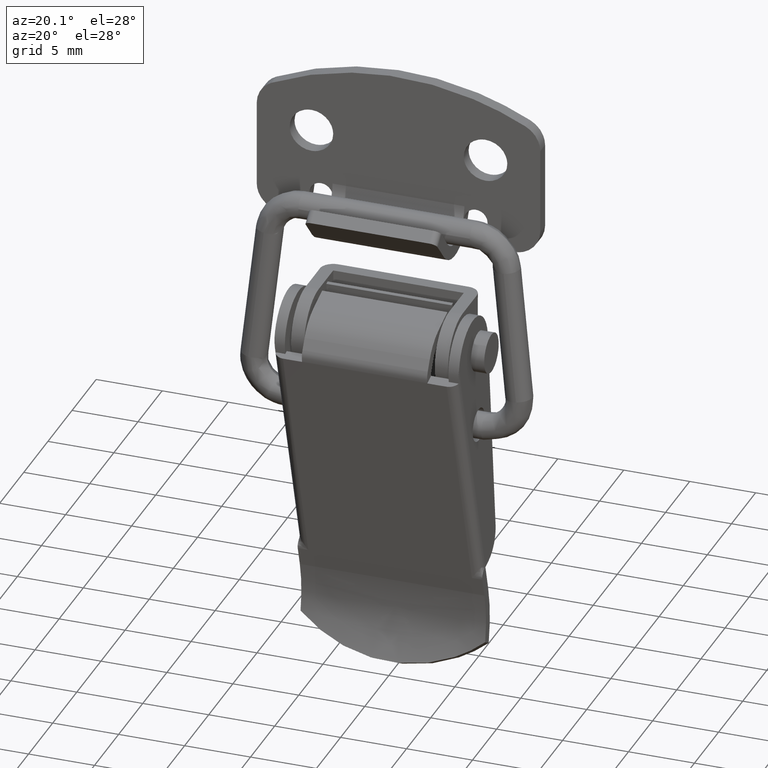
[diagram: clean part render]
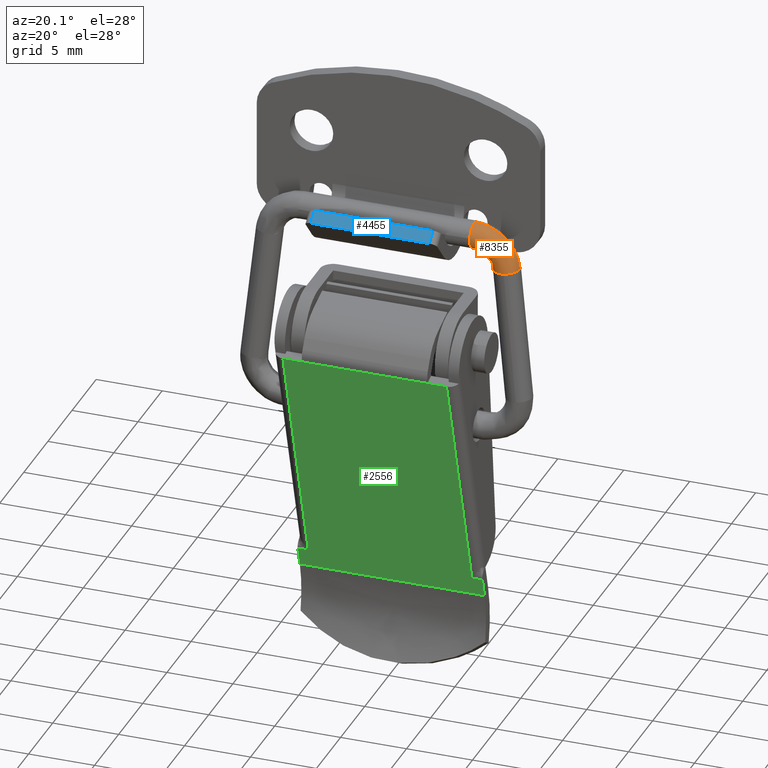
[diagram: same view with three faces highlighted in distinct colors, each labeled with its STEP entity id]
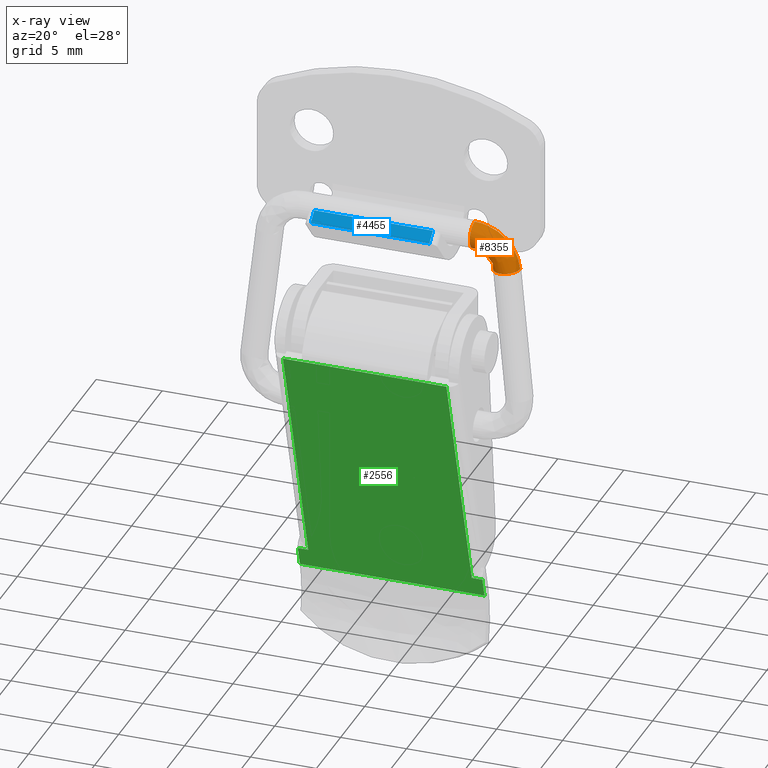
[diagram: x-ray of the same camera — body ghosted, the three highlighted faces saturated]
A machine part, auxiliary view with three faces highlighted in distinct colors.
The next image is the same camera in x-ray (body ghosted, the three faces saturated) — at least one of them is partly hidden behind the body in this view.
Their STEP definitions:

[orange] entity #8355 — the highlighted face is a freeform B-spline surface patch.
#8081=CARTESIAN_POINT('',(6.500000161111061,-0.989418673423409,0.144663909399136));
#8082=VERTEX_POINT('',#8081);
#8088=CARTESIAN_POINT('',(6.500000161111060,0.066592674805473,0.997780244173213));
#8089=VERTEX_POINT('',#8088);
#8090=CARTESIAN_POINT('',(6.500000161111060,0.066592674805473,0.997780244173213));
#8091=CARTESIAN_POINT('',(6.500000161111060,-0.194634198861513,1.015215450267097));
#8092=CARTESIAN_POINT('',(6.500000161111060,-0.461432659268814,0.925009915749482));
#8093=CARTESIAN_POINT('',(6.500000161111061,-0.835816943845512,0.597495277664344));
#8094=CARTESIAN_POINT('',(6.500000161111061,-0.954694826212640,0.377524743445717));
#8095=CARTESIAN_POINT('',(6.500000161111061,-0.989418673423409,0.144663909399136));
#8096=B_SPLINE_CURVE_WITH_KNOTS('',3,(#8090,#8091,#8092,#8093,#8094,#8095),.UNSPECIFIED.,.F.,.U.,(4,2,4),(0.0,0.125000000000000,0.237494925109924),.UNSPECIFIED.);
#8097=EDGE_CURVE('',#8089,#8082,#8096,.T.);
#8142=CARTESIAN_POINT('',(6.500000161111060,-0.066592674806069,-0.997780244173069));
#8143=VERTEX_POINT('',#8142);
#8153=CARTESIAN_POINT('',(6.500000161111061,-0.989418673423409,0.144663909399136));
#8154=CARTESIAN_POINT('',(6.500000161111061,-0.993277021582366,0.118778573152135));
#8155=CARTESIAN_POINT('',(6.500000161111061,-0.996095493010638,0.092733953720828));
#8156=CARTESIAN_POINT('',(6.500000161111061,-1.015264751540243,-0.194618040715439));
#8157=CARTESIAN_POINT('',(6.500000161111061,-0.925046503479677,-0.461406290397881));
#8158=CARTESIAN_POINT('',(6.500000161111060,-0.580261711541936,-0.855483212417382));
#8159=CARTESIAN_POINT('',(6.500000161111060,-0.327818294736270,-0.980345224991711));
#8160=CARTESIAN_POINT('',(6.500000161111060,-0.066592674806069,-0.997780244173069));
#8161=B_SPLINE_CURVE_WITH_KNOTS('',3,(#8153,#8154,#8155,#8156,#8157,#8158,#8159,#8160),.UNSPECIFIED.,.F.,.U.,(4,2,2,4),(0.237494925109924,0.250000000000000,0.375000000000000,0.500000000000000),.UNSPECIFIED.);
#8162=EDGE_CURVE('',#8082,#8143,#8161,.T.);
#8223=CARTESIAN_POINT('',(7.992258824598796,-0.111375252123258,-2.341257563667813));
#8224=VERTEX_POINT('',#8223);
#8225=CARTESIAN_POINT('',(7.992258824598796,-0.111375252123258,-2.341257563667813));
#8226=CARTESIAN_POINT('',(7.953656469183117,-0.099193781524558,-1.975813452480949));
#8227=CARTESIAN_POINT('',(7.776141883542896,-0.087607992339761,-1.628239770190030));
#8228=CARTESIAN_POINT('',(7.231197419014606,-0.071258003682082,-1.137740110455895));
#8229=CARTESIAN_POINT('',(6.867148830861085,-0.066593592505487,-0.997807780570720));
#8230=CARTESIAN_POINT('',(6.500000161111060,-0.066592674806069,-0.997780244173069));
#8231=B_SPLINE_CURVE_WITH_KNOTS('',3,(#8225,#8226,#8227,#8228,#8229,#8230),.UNSPECIFIED.,.F.,.U.,(4,2,4),(0.324576511854807,0.356201117693192,0.387825723531576),.UNSPECIFIED.);
#8232=EDGE_CURVE('',#8224,#8143,#8231,.T.);
#8236=CARTESIAN_POINT('',(9.980117214787347,-0.037796026983358,-2.133880809462196));
#8237=VERTEX_POINT('',#8236);
#8238=CARTESIAN_POINT('',(9.980117214787326,-0.037796026983360,-2.133880809462190));
#8239=CARTESIAN_POINT('',(9.890155895106378,-0.009418865462279,-1.282565974359886));
#8240=CARTESIAN_POINT('',(9.476658746089957,0.017581627120874,-0.472551186364730));
#8241=CARTESIAN_POINT('',(8.206023976355601,0.055704528484531,0.671135854544901));
#8242=CARTESIAN_POINT('',(7.356725005934775,0.066589343387157,0.997680293203252));
#8243=CARTESIAN_POINT('',(6.500000161111060,0.066592674805473,0.997780244173213));
#8244=B_SPLINE_CURVE_WITH_KNOTS('',3,(#8238,#8239,#8240,#8241,#8242,#8243),.UNSPECIFIED.,.F.,.U.,(4,2,4),(0.324576511854807,0.356201117693192,0.387825723531576),.UNSPECIFIED.);
#8245=EDGE_CURVE('',#8237,#8089,#8244,.T.);
#8272=CARTESIAN_POINT('',(9.984472439923747,-0.008120745176088,-2.186100215362883));
#8273=CARTESIAN_POINT('',(10.001946255399490,-0.279763598129993,-2.175459994717326));
#8274=CARTESIAN_POINT('',(9.902677066529000,-0.557101522276394,-2.175222429351263));
#8275=CARTESIAN_POINT('',(9.539593998449194,-0.947987822875370,-2.195136650852787));
#8276=CARTESIAN_POINT('',(9.026803254933361,-1.182234951970494,-2.233855665368793));
#8277=CARTESIAN_POINT('',(8.499707978268514,-0.985911370429690,-2.288224933461072));
#8278=CARTESIAN_POINT('',(8.111562783120611,-0.622421573917248,-2.335558993669428));
#8279=CARTESIAN_POINT('',(7.994128478130084,-0.352986597864970,-2.355195373116345));
#8280=CARTESIAN_POINT('',(7.993532512479946,-0.080728227058815,-2.364324726125360));
#8281=CARTESIAN_POINT('',(9.905580414208776,0.020867153700232,-1.316463260657441));
#8282=CARTESIAN_POINT('',(9.922658704459082,-0.250630454408248,-1.301465694673616));
#8283=CARTESIAN_POINT('',(9.825636501822727,-0.528793518215874,-1.325982319006964));
#8284=CARTESIAN_POINT('',(9.470771607143940,-0.922697818396068,-1.436436527393445));
#8285=CARTESIAN_POINT('',(8.969587068945971,-1.161207341322273,-1.603027355981006));
#8286=CARTESIAN_POINT('',(8.454419565764884,-0.969265064207260,-1.788835755641296));
#8287=CARTESIAN_POINT('',(8.075056786431192,-0.609001599982160,-1.932959783427543));
#8288=CARTESIAN_POINT('',(7.960279347606239,-0.340542760030091,-1.981880245523503));
#8289=CARTESIAN_POINT('',(7.959696859428203,-0.068289343027178,-1.991158212627003));
#8290=CARTESIAN_POINT('',(9.488471057153689,0.048561364215830,-0.485636934266628));
#8291=CARTESIAN_POINT('',(9.503459614695524,-0.222797437224038,-0.466475168201103));
#8292=CARTESIAN_POINT('',(9.418309239053693,-0.501749065228283,-0.514648718565553));
#8293=CARTESIAN_POINT('',(9.106866570375347,-0.898537585725237,-0.711629536973782));
#8294=CARTESIAN_POINT('',(8.667008751563747,-1.141120559147481,-1.000423881260630));
#8295=CARTESIAN_POINT('',(8.214880794344511,-0.953365356528551,-1.311844516939764));
#8296=CARTESIAN_POINT('',(7.881940380809064,-0.596185189114869,-1.548467450055165));
#8297=CARTESIAN_POINT('',(7.781208408420762,-0.328659207516224,-1.625373663090241));
#8298=CARTESIAN_POINT('',(7.780697204923237,-0.056410524644659,-1.634793654136928));
#8299=CARTESIAN_POINT('',(8.192811010413465,0.087435099844229,0.680575134585290));
#8300=CARTESIAN_POINT('',(8.201303044309981,-0.183728786159758,0.705584363726848));
#8301=CARTESIAN_POINT('',(8.153059584309151,-0.463787733700180,0.624191227282411));
#8302=CARTESIAN_POINT('',(7.976606200328392,-0.864626342628949,0.305707755914658));
#8303=CARTESIAN_POINT('',(7.727396928748538,-1.112929351367345,-0.154687647848527));
#8304=CARTESIAN_POINT('',(7.471235791991946,-0.931053748409591,-0.642496273370070));
#8305=CARTESIAN_POINT('',(7.282602478255423,-0.578203232174319,-1.009008741835630));
#8306=CARTESIAN_POINT('',(7.225530987445956,-0.311987197596784,-1.125213365506636));
#8307=CARTESIAN_POINT('',(7.225241356011276,-0.039745162559899,-1.134832791593517));
#8308=CARTESIAN_POINT('',(7.322421156635206,0.098367268938905,1.008540198666475));
#8309=CARTESIAN_POINT('',(7.326547216178275,-0.172741770111554,1.035194836395391));
#8310=CARTESIAN_POINT('',(7.303106967224053,-0.453112304669237,0.944454089533660));
#8311=CARTESIAN_POINT('',(7.217372831703819,-0.855090572064595,0.591780864590884));
#8312=CARTESIAN_POINT('',(7.096288489142584,-1.105003163683572,0.083097975055674));
#8313=CARTESIAN_POINT('',(6.971826402303813,-0.924782113951831,-0.454347246328724));
#8314=CARTESIAN_POINT('',(6.880174336425432,-0.573150019085136,-0.857412355064154));
#8315=CARTESIAN_POINT('',(6.852444768245430,-0.307302629809174,-0.984676337510498));
#8316=CARTESIAN_POINT('',(6.852304043753768,-0.035062465791788,-0.994351894180434));
#8317=CARTESIAN_POINT('',(6.448612050910221,0.097939067606757,0.995694167966307));
#8318=CARTESIAN_POINT('',(6.448354240197300,-0.173172112360549,1.022284578209605));
#8319=CARTESIAN_POINT('',(6.449818869398743,-0.453530484227630,0.931908711956757));
#8320=CARTESIAN_POINT('',(6.455175839731369,-0.855464255232049,0.580570378297800));
#8321=CARTESIAN_POINT('',(6.462741615319732,-1.105313986227958,0.073773306767673));
#8322=CARTESIAN_POINT('',(6.470518444189279,-0.925028248383983,-0.461731272216375));
#8323=CARTESIAN_POINT('',(6.476245187541079,-0.573348483681397,-0.863366286709071));
#8324=CARTESIAN_POINT('',(6.477977828458691,-0.307486662462234,-0.990197311145531));
#8325=CARTESIAN_POINT('',(6.477986621419559,-0.035246425007819,-0.999870664706705));
#8326=B_SPLINE_SURFACE_WITH_KNOTS('',3,3,((#8272,#8281,#8290,#8299,#8308,#8317),(#8273,#8282,#8291,#8300,#8309,#8318),(#8274,#8283,#8292,#8301,#8310,#8319),(#8275,#8284,#8293,#8302,#8311,#8320),(#8276,#8285,#8294,#8303,#8312,#8321),(#8277,#8286,#8295,#8304,#8313,#8322),(#8278,#8287,#8296,#8305,#8314,#8323),(#8279,#8288,#8297,#8306,#8315,#8324),(#8280,#8289,#8298,#8307,#8316,#8325)),.UNSPECIFIED.,.F.,.F.,.U.,(4,2,1,2,4),(4,2,4),(0.0,0.817288991470506,1.603143788887300,2.388998586304093,3.206287579577490),(0.0,2.621710894431640,5.243421788863231),.UNSPECIFIED.);
#8327=ORIENTED_EDGE('',*,*,#8232,.F.);
#8328=CARTESIAN_POINT('',(9.097193302862706,-1.067332816519731,-2.192760395980526));
#8329=VERTEX_POINT('',#8328);
#8330=CARTESIAN_POINT('',(9.097193302862706,-1.067332816519731,-2.192760395980526));
#8331=CARTESIAN_POINT('',(9.071337279423894,-1.070415869611439,-2.195386873132209));
#8332=CARTESIAN_POINT('',(9.045357391891105,-1.072455331800875,-2.198061211183880));
#8333=CARTESIAN_POINT('',(8.759114757945127,-1.083041577578217,-2.227922821838680));
#8334=CARTESIAN_POINT('',(8.496935146021649,-0.984961848706916,-2.258866647198703));
#8335=CARTESIAN_POINT('',(8.116673643781121,-0.628774879149574,-2.310878240628413));
#8336=CARTESIAN_POINT('',(8.000933340182902,-0.372860978237411,-2.331625730006507));
#8337=CARTESIAN_POINT('',(7.992258824598796,-0.111375252123258,-2.341257563667813));
#8338=B_SPLINE_CURVE_WITH_KNOTS('',3,(#8330,#8331,#8332,#8333,#8334,#8335,#8336,#8337),.UNSPECIFIED.,.F.,.U.,(4,2,2,4),(0.237494924529825,0.250000000000000,0.375000000000000,0.500000000000000),.UNSPECIFIED.);
#8339=EDGE_CURVE('',#8329,#8224,#8338,.T.);
#8340=ORIENTED_EDGE('',*,*,#8339,.F.);
#8341=CARTESIAN_POINT('',(9.980117214787347,-0.037796026983358,-2.133880809462196));
#8342=CARTESIAN_POINT('',(9.988791874613133,-0.299283011159840,-2.124248918653092));
#8343=CARTESIAN_POINT('',(9.890294667676301,-0.563128023374638,-2.125851007396291));
#8344=CARTESIAN_POINT('',(9.552364592224842,-0.927379441322827,-2.149379673262536));
#8345=CARTESIAN_POINT('',(9.329790917754597,-1.039583430407088,-2.169133416875167));
#8346=CARTESIAN_POINT('',(9.097193302862706,-1.067332816519731,-2.192760395980526));
#8347=B_SPLINE_CURVE_WITH_KNOTS('',3,(#8341,#8342,#8343,#8344,#8345,#8346),.UNSPECIFIED.,.F.,.U.,(4,2,4),(0.0,0.125000000000000,0.237494924529825),.UNSPECIFIED.);
#8348=EDGE_CURVE('',#8237,#8329,#8347,.T.);
#8349=ORIENTED_EDGE('',*,*,#8348,.F.);
#8350=ORIENTED_EDGE('',*,*,#8245,.T.);
#8351=ORIENTED_EDGE('',*,*,#8097,.T.);
#8352=ORIENTED_EDGE('',*,*,#8162,.T.);
#8353=EDGE_LOOP('',(#8327,#8340,#8349,#8350,#8351,#8352));
#8354=FACE_OUTER_BOUND('',#8353,.T.);
#8355=ADVANCED_FACE('',(#8354),#8326,.F.);

[blue] entity #4455 — the highlighted face is a freeform B-spline surface patch.
#4420=CARTESIAN_POINT('',(4.949549982556200,-3.937529390594108,0.806756864429703));
#4421=CARTESIAN_POINT('',(4.949549982556200,-3.111329589258237,1.532980153279916));
#4422=CARTESIAN_POINT('',(-4.949550223955010,-3.937529390594108,0.806756864429703));
#4423=CARTESIAN_POINT('',(-4.949550223955010,-3.111329589258237,1.532980153279917));
#4424=B_SPLINE_SURFACE_WITH_KNOTS('',1,1,((#4420,#4422),(#4421,#4423)),.UNSPECIFIED.,.F.,.F.,.U.,(2,2),(2,2),(0.041708334948495,0.958291687403247),(0.0,9.899100206511211),.UNSPECIFIED.);
#4425=CARTESIAN_POINT('',(-4.499999999999949,-3.900009000000000,0.839736999999985));
#4426=VERTEX_POINT('',#4425);
#4427=CARTESIAN_POINT('',(4.499999999999949,-3.900009000000000,0.839736999999985));
#4428=VERTEX_POINT('',#4427);
#4429=CARTESIAN_POINT('',(-4.499999999999949,-3.900009000000000,0.839736999999985));
#4430=CARTESIAN_POINT('',(4.499999999999949,-3.900009000000000,0.839736999999985));
#4431=QUASI_UNIFORM_CURVE('',1,(#4429,#4430),.UNSPECIFIED.,.F.,.U.);
#4432=EDGE_CURVE('',#4426,#4428,#4431,.T.);
#4433=ORIENTED_EDGE('',*,*,#4432,.T.);
#4434=CARTESIAN_POINT('',(4.499999999999949,-3.148850000000000,1.500000000000000));
#4435=VERTEX_POINT('',#4434);
#4436=CARTESIAN_POINT('',(4.499999999999949,-3.900009000000000,0.839736999999985));
#4437=CARTESIAN_POINT('',(4.499999999999949,-3.148850000000000,1.500000000000000));
#4438=QUASI_UNIFORM_CURVE('',1,(#4436,#4437),.UNSPECIFIED.,.F.,.U.);
#4439=EDGE_CURVE('',#4428,#4435,#4438,.T.);
#4440=ORIENTED_EDGE('',*,*,#4439,.T.);
#4441=CARTESIAN_POINT('',(-4.499999999999949,-3.148850000000000,1.500000000000000));
#4442=VERTEX_POINT('',#4441);
#4443=CARTESIAN_POINT('',(-4.499999999999949,-3.148850000000000,1.500000000000000));
#4444=CARTESIAN_POINT('',(4.499999999999949,-3.148850000000000,1.500000000000000));
#4445=QUASI_UNIFORM_CURVE('',1,(#4443,#4444),.UNSPECIFIED.,.F.,.U.);
#4446=EDGE_CURVE('',#4442,#4435,#4445,.T.);
#4447=ORIENTED_EDGE('',*,*,#4446,.F.);
#4448=CARTESIAN_POINT('',(-4.499999999999949,-3.148850000000000,1.500000000000000));
#4449=CARTESIAN_POINT('',(-4.499999999999949,-3.900009000000000,0.839736999999985));
#4450=QUASI_UNIFORM_CURVE('',1,(#4448,#4449),.UNSPECIFIED.,.F.,.U.);
#4451=EDGE_CURVE('',#4442,#4426,#4450,.T.);
#4452=ORIENTED_EDGE('',*,*,#4451,.T.);
#4453=EDGE_LOOP('',(#4433,#4440,#4447,#4452));
#4454=FACE_OUTER_BOUND('',#4453,.T.);
#4455=ADVANCED_FACE('',(#4454),#4424,.T.);

[green] entity #2556 — the highlighted face is a freeform B-spline surface patch.
#2226=CARTESIAN_POINT('',(-6.999999999999780,0.683907125467206,-29.376695583753701));
#2227=VERTEX_POINT('',#2226);
#2285=CARTESIAN_POINT('',(7.0,0.683907125467206,-29.376695583753701));
#2286=VERTEX_POINT('',#2285);
#2295=CARTESIAN_POINT('',(-6.999999999999780,0.683907125467206,-29.376695583753701));
#2296=CARTESIAN_POINT('',(7.0,0.683907125467206,-29.376695583753701));
#2297=QUASI_UNIFORM_CURVE('',1,(#2295,#2296),.UNSPECIFIED.,.F.,.U.);
#2298=EDGE_CURVE('',#2227,#2286,#2297,.T.);
#2358=CARTESIAN_POINT('',(-6.199999999999870,0.249987679656595,-27.885420731988550));
#2359=VERTEX_POINT('',#2358);
#2371=CARTESIAN_POINT('',(-6.199999999999870,-4.999999999999920,-9.842499000000000));
#2372=VERTEX_POINT('',#2371);
#2373=CARTESIAN_POINT('',(-6.199999999999870,-4.999999999999920,-9.842499000000000));
#2374=CARTESIAN_POINT('',(-6.199999999999870,0.249987679656595,-27.885420731988550));
#2375=QUASI_UNIFORM_CURVE('',1,(#2373,#2374),.UNSPECIFIED.,.F.,.U.);
#2376=EDGE_CURVE('',#2372,#2359,#2375,.T.);
#2481=CARTESIAN_POINT('',(7.699299972865275,0.967905302620735,-30.352727756603201));
#2482=CARTESIAN_POINT('',(7.699299972865275,-5.285740617068285,-8.860478487953403));
#2483=CARTESIAN_POINT('',(-7.699300348374366,0.967905302620735,-30.352727756603201));
#2484=CARTESIAN_POINT('',(-7.699300348374366,-5.285740617068285,-8.860478487953403));
#2485=B_SPLINE_SURFACE_WITH_KNOTS('',1,1,((#2481,#2483),(#2482,#2484)),.UNSPECIFIED.,.F.,.F.,.U.,(2,2),(2,2),(0.0,22.383584742275328),(0.0,15.398600321239639),.UNSPECIFIED.);
#2486=CARTESIAN_POINT('',(4.750000000000000,-4.999999999999920,-9.842499000000000));
#2487=VERTEX_POINT('',#2486);
#2488=CARTESIAN_POINT('',(4.750000000000000,-5.001742287413779,-9.836511184911490));
#2489=VERTEX_POINT('',#2488);
#2490=CARTESIAN_POINT('',(4.750000000000000,-4.999999999999920,-9.842499000000000));
#2491=CARTESIAN_POINT('',(4.750000000000000,-5.001742287413779,-9.836511184911490));
#2492=QUASI_UNIFORM_CURVE('',1,(#2490,#2491),.UNSPECIFIED.,.F.,.U.);
#2493=EDGE_CURVE('',#2487,#2489,#2492,.T.);
#2494=ORIENTED_EDGE('',*,*,#2493,.T.);
#2495=CARTESIAN_POINT('',(-4.750000000000000,-5.001742287413779,-9.836511184911490));
#2496=VERTEX_POINT('',#2495);
#2497=CARTESIAN_POINT('',(4.750000000000000,-5.001742287413779,-9.836511184911490));
#2498=CARTESIAN_POINT('',(-4.750000000000000,-5.001742287413779,-9.836511184911490));
#2499=QUASI_UNIFORM_CURVE('',1,(#2497,#2498),.UNSPECIFIED.,.F.,.U.);
#2500=EDGE_CURVE('',#2489,#2496,#2499,.T.);
#2501=ORIENTED_EDGE('',*,*,#2500,.T.);
#2502=CARTESIAN_POINT('',(-4.750000000000000,-4.999999999999920,-9.842499000000000));
#2503=VERTEX_POINT('',#2502);
#2504=CARTESIAN_POINT('',(-4.750000000000000,-4.999999999999920,-9.842499000000000));
#2505=CARTESIAN_POINT('',(-4.750000000000000,-5.001742287413779,-9.836511184911490));
#2506=QUASI_UNIFORM_CURVE('',1,(#2504,#2505),.UNSPECIFIED.,.F.,.U.);
#2507=EDGE_CURVE('',#2503,#2496,#2506,.T.);
#2508=ORIENTED_EDGE('',*,*,#2507,.F.);
#2509=CARTESIAN_POINT('',(-6.199999999999870,-4.999999999999920,-9.842499000000000));
#2510=CARTESIAN_POINT('',(-4.750000000000000,-4.999999999999920,-9.842499000000000));
#2511=QUASI_UNIFORM_CURVE('',1,(#2509,#2510),.UNSPECIFIED.,.F.,.U.);
#2512=EDGE_CURVE('',#2372,#2503,#2511,.T.);
#2513=ORIENTED_EDGE('',*,*,#2512,.F.);
#2514=ORIENTED_EDGE('',*,*,#2376,.T.);
#2515=CARTESIAN_POINT('',(-6.999999999999830,0.249987679656597,-27.885420731988550));
#2516=VERTEX_POINT('',#2515);
#2517=CARTESIAN_POINT('',(-6.199999999999870,0.249987679656595,-27.885420731988550));
#2518=CARTESIAN_POINT('',(-6.999999999999830,0.249987679656597,-27.885420731988550));
#2519=QUASI_UNIFORM_CURVE('',1,(#2517,#2518),.UNSPECIFIED.,.F.,.U.);
#2520=EDGE_CURVE('',#2359,#2516,#2519,.T.);
#2521=ORIENTED_EDGE('',*,*,#2520,.T.);
#2522=CARTESIAN_POINT('',(-6.999999999999780,0.683907125467206,-29.376695583753701));
#2523=CARTESIAN_POINT('',(-6.999999999999830,0.249987679656597,-27.885420731988550));
#2524=QUASI_UNIFORM_CURVE('',1,(#2522,#2523),.UNSPECIFIED.,.F.,.U.);
#2525=EDGE_CURVE('',#2227,#2516,#2524,.T.);
#2526=ORIENTED_EDGE('',*,*,#2525,.F.);
#2527=ORIENTED_EDGE('',*,*,#2298,.T.);
#2528=CARTESIAN_POINT('',(7.0,0.249987679656597,-27.885420731988550));
#2529=VERTEX_POINT('',#2528);
#2530=CARTESIAN_POINT('',(7.0,0.683907125467206,-29.376695583753701));
#2531=CARTESIAN_POINT('',(7.0,0.249987679656597,-27.885420731988550));
#2532=QUASI_UNIFORM_CURVE('',1,(#2530,#2531),.UNSPECIFIED.,.F.,.U.);
#2533=EDGE_CURVE('',#2286,#2529,#2532,.T.);
#2534=ORIENTED_EDGE('',*,*,#2533,.T.);
#2535=CARTESIAN_POINT('',(6.200000000000000,0.249987679656597,-27.885420731988550));
#2536=VERTEX_POINT('',#2535);
#2537=CARTESIAN_POINT('',(7.0,0.249987679656597,-27.885420731988550));
#2538=CARTESIAN_POINT('',(6.200000000000000,0.249987679656597,-27.885420731988550));
#2539=QUASI_UNIFORM_CURVE('',1,(#2537,#2538),.UNSPECIFIED.,.F.,.U.);
#2540=EDGE_CURVE('',#2529,#2536,#2539,.T.);
#2541=ORIENTED_EDGE('',*,*,#2540,.T.);
#2542=CARTESIAN_POINT('',(6.200000000000000,-4.999999999999920,-9.842499000000000));
#2543=VERTEX_POINT('',#2542);
#2544=CARTESIAN_POINT('',(6.200000000000000,0.249987679656597,-27.885420731988550));
#2545=CARTESIAN_POINT('',(6.200000000000000,-4.999999999999920,-9.842499000000000));
#2546=QUASI_UNIFORM_CURVE('',1,(#2544,#2545),.UNSPECIFIED.,.F.,.U.);
#2547=EDGE_CURVE('',#2536,#2543,#2546,.T.);
#2548=ORIENTED_EDGE('',*,*,#2547,.T.);
#2549=CARTESIAN_POINT('',(4.750000000000000,-4.999999999999920,-9.842499000000000));
#2550=CARTESIAN_POINT('',(6.200000000000000,-4.999999999999920,-9.842499000000000));
#2551=QUASI_UNIFORM_CURVE('',1,(#2549,#2550),.UNSPECIFIED.,.F.,.U.);
#2552=EDGE_CURVE('',#2487,#2543,#2551,.T.);
#2553=ORIENTED_EDGE('',*,*,#2552,.F.);
#2554=EDGE_LOOP('',(#2494,#2501,#2508,#2513,#2514,#2521,#2526,#2527,#2534,#2541,#2548,#2553));
#2555=FACE_OUTER_BOUND('',#2554,.T.);
#2556=ADVANCED_FACE('',(#2555),#2485,.T.);